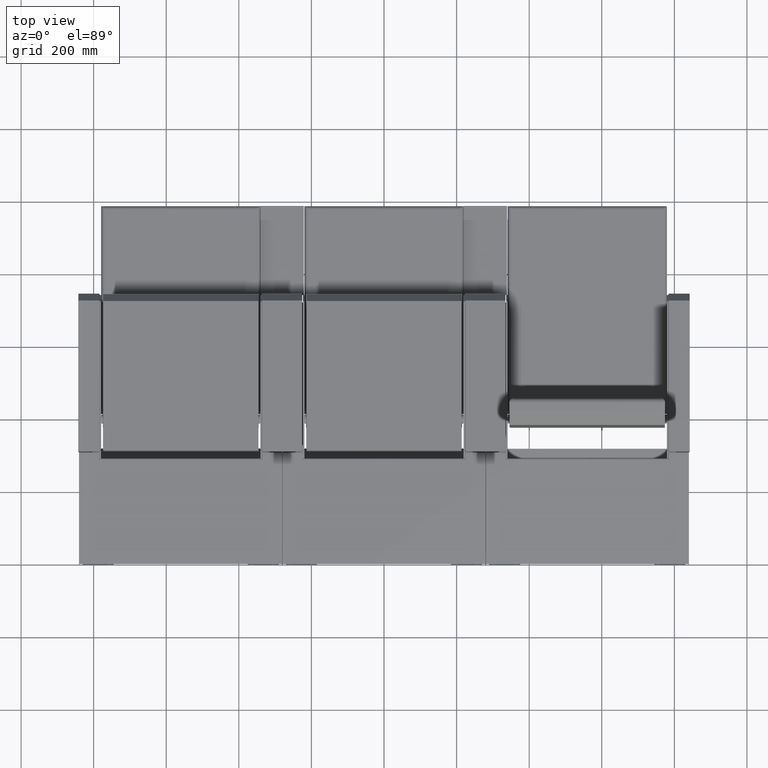
[diagram: clean part render]
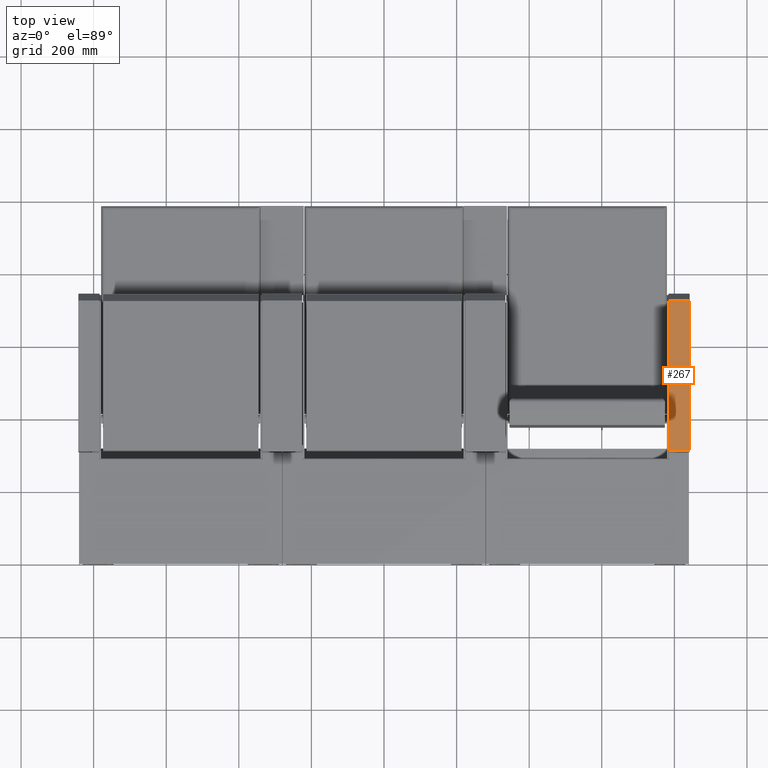
[diagram: same view with one face highlighted and labeled with its STEP entity id]
A machine part, top view. The second image highlights one B-rep face of the part: STEP entity #267.
In plain terms, the highlighted planar face has unit normal (0, -0.0872, -0.9962).
Its self-contained STEP definition (entity closure, byte-faithful):
#267 = ADVANCED_FACE ( 'NONE', ( #3204 ), #1450, .F. ) ;
#1046 = EDGE_LOOP ( 'NONE', ( #7455, #7477, #7532, #7479 ) ) ;
#1384 = DIRECTION ( 'NONE',  ( 0.0000000000000000000, 1.000000000000000000, 1.244748840663594400E-016 ) ) ;
#1450 = PLANE ( 'NONE',  #6856 ) ;
#1460 = CARTESIAN_POINT ( 'NONE',  ( 29.25000000000000000, 325.8199999999999900, 22.00000000000003900 ) ) ;
#1470 = DIRECTION ( 'NONE',  ( 0.0000000000000000000, 1.244748840663594400E-016, -1.000000000000000000 ) ) ;
#1638 = DIRECTION ( 'NONE',  ( 0.0000000000000000000, -1.000000000000000000, -1.244748840663594400E-016 ) ) ;
#1649 = DIRECTION ( 'NONE',  ( -0.0000000000000000000, 1.000000000000000000, 1.244748840663594400E-016 ) ) ;
#1651 = DIRECTION ( 'NONE',  ( 1.000000000000000000, -0.0000000000000000000, -0.0000000000000000000 ) ) ;
#1652 = CARTESIAN_POINT ( 'NONE',  ( 29.25000000000000000, -90.08738299786145400, 21.99999999999998900 ) ) ;
#1653 = CARTESIAN_POINT ( 'NONE',  ( 27.25000000000000400, 325.8199999999999900, 22.00000000000003900 ) ) ;
#1658 = CARTESIAN_POINT ( 'NONE',  ( -27.25000000000000700, -92.26999999999996800, 21.99999999999998900 ) ) ;
#1826 = EDGE_CURVE ( 'NONE', #9930, #9728, #3534, .T. ) ;
#1833 = EDGE_CURVE ( 'NONE', #9727, #9692, #3521, .T. ) ;
#1834 = EDGE_CURVE ( 'NONE', #9728, #9727, #3519, .T. ) ;
#1839 = EDGE_CURVE ( 'NONE', #9692, #9930, #3509, .T. ) ;
#3204 = FACE_OUTER_BOUND ( 'NONE', #1046, .T. ) ;
#3506 = VECTOR ( 'NONE', #3642, 1000.000000000000000 ) ;
#3509 = LINE ( 'NONE', #3641, #3506 ) ;
#3516 = VECTOR ( 'NONE', #1651, 1000.000000000000000 ) ;
#3518 = VECTOR ( 'NONE', #1649, 1000.000000000000000 ) ;
#3519 = LINE ( 'NONE', #1652, #3516 ) ;
#3521 = LINE ( 'NONE', #1653, #3518 ) ;
#3532 = VECTOR ( 'NONE', #1638, 1000.000000000000000 ) ;
#3534 = LINE ( 'NONE', #1658, #3532 ) ;
#3641 = CARTESIAN_POINT ( 'NONE',  ( 29.25000000000000000, 324.6652994616207500, 22.00000000000003900 ) ) ;
#3642 = DIRECTION ( 'NONE',  ( -1.000000000000000000, 0.0000000000000000000, 0.0000000000000000000 ) ) ;
#6856 = AXIS2_PLACEMENT_3D ( 'NONE', #1460, #1470, #1384 ) ;
#7455 = ORIENTED_EDGE ( 'NONE', *, *, #1839, .T. ) ;
#7477 = ORIENTED_EDGE ( 'NONE', *, *, #1826, .T. ) ;
#7479 = ORIENTED_EDGE ( 'NONE', *, *, #1833, .T. ) ;
#7532 = ORIENTED_EDGE ( 'NONE', *, *, #1834, .T. ) ;
#7913 = CARTESIAN_POINT ( 'NONE',  ( 27.25000000000000400, 324.6652994616207500, 22.00000000000003900 ) ) ;
#7948 = CARTESIAN_POINT ( 'NONE',  ( 27.25000000000000400, -90.08738299786144000, 21.99999999999998900 ) ) ;
#7949 = CARTESIAN_POINT ( 'NONE',  ( -27.25000000000000700, -90.08738299786144000, 21.99999999999998900 ) ) ;
#8145 = CARTESIAN_POINT ( 'NONE',  ( -27.25000000000000700, 324.6652994616207500, 22.00000000000003900 ) ) ;
#9692 = VERTEX_POINT ( 'NONE', #7913 ) ;
#9727 = VERTEX_POINT ( 'NONE', #7948 ) ;
#9728 = VERTEX_POINT ( 'NONE', #7949 ) ;
#9930 = VERTEX_POINT ( 'NONE', #8145 ) ;